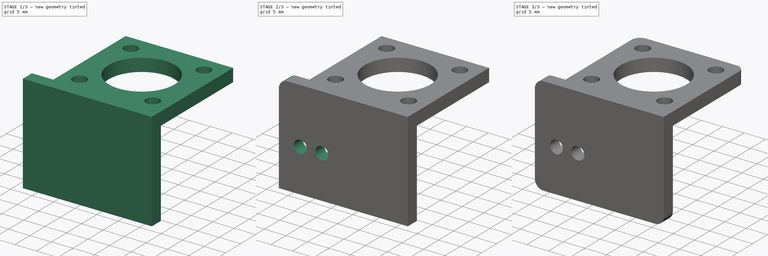
[diagram: build sequence overview — one tinted view per stage of 3, left to right]
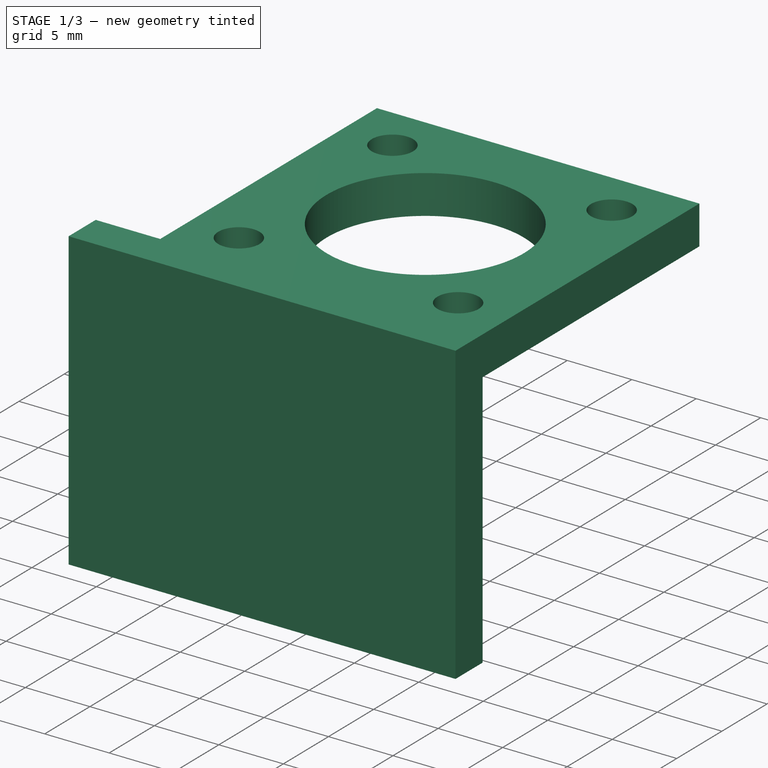
[diagram: stage 1 of 3 — iso view after this stage's code; geometry added in this stage tinted green]
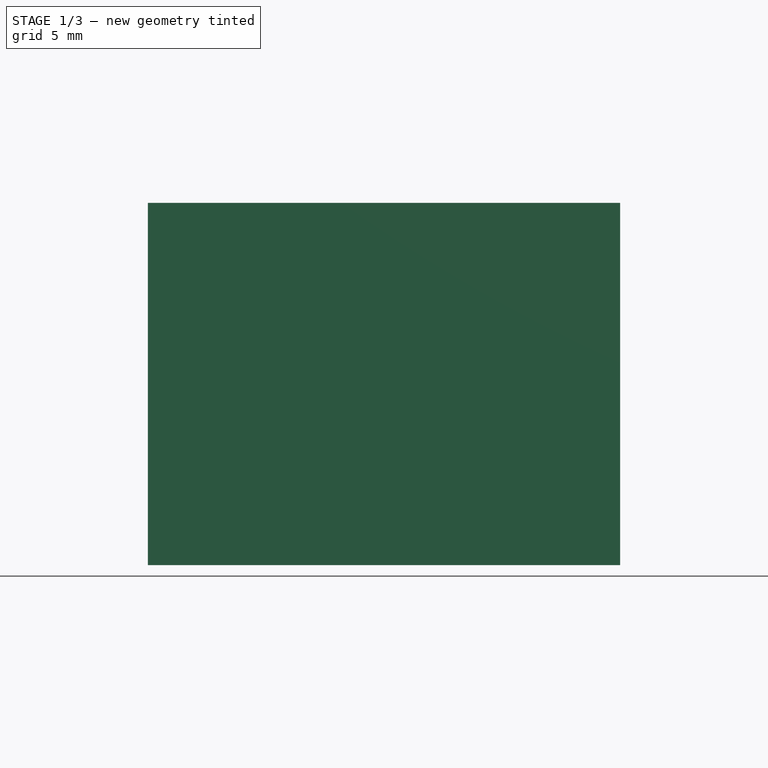
[diagram: stage 1 of 3 — front view after this stage's code; geometry added in this stage tinted green]
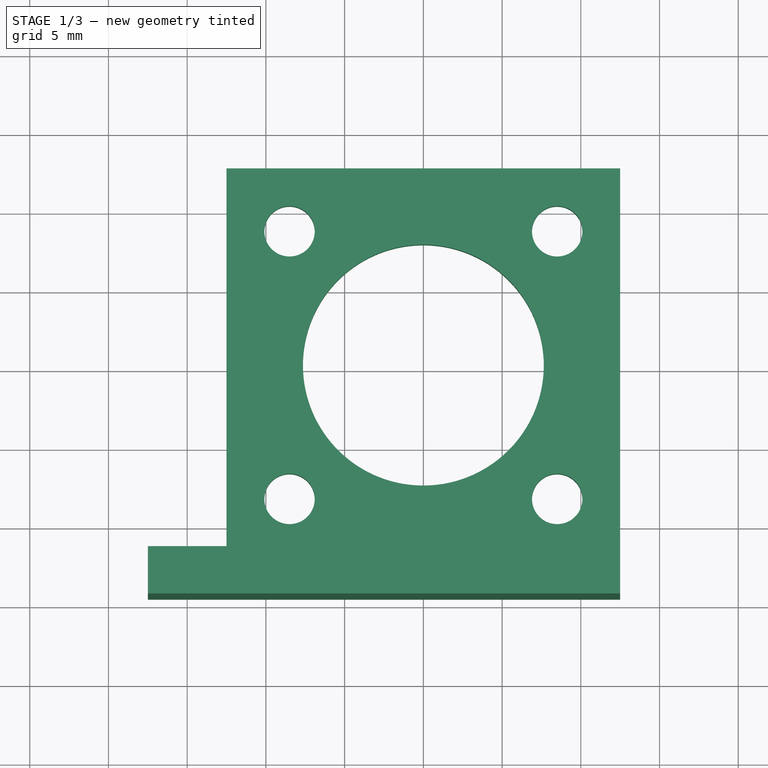
[diagram: stage 1 of 3 — top view after this stage's code; geometry added in this stage tinted green]
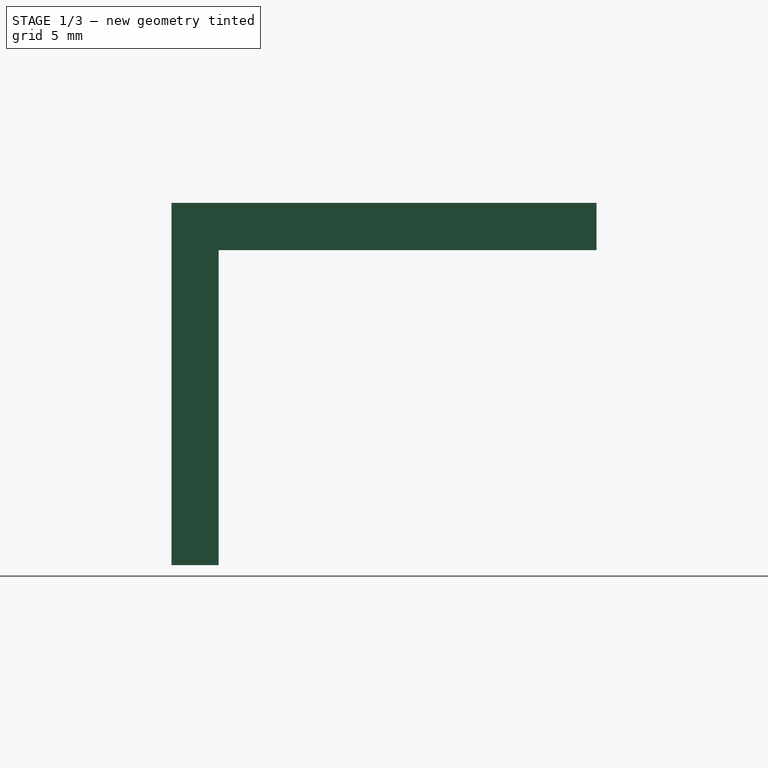
[diagram: stage 1 of 3 — right view after this stage's code; geometry added in this stage tinted green]
FCSTD DOCUMENT  (FreeCAD 0.19R24276 (Git))
Label: Guillotine_part_4_knife_holder
License: All rights reserved
LicenseURL: http://en.wikipedia.org/wiki/All_rights_reserved
objects: Sketcher::SketchObject×4, PartDesign::Pad×3, PartDesign::Fillet×3, PartDesign::Pocket×1, PartDesign::Body×1
note: 19 computed .brp shape members not serialized (recipe doc carries the construction recipe); baked Part::Feature solids carry a one-line shape summary decoded from their .brp

FEATURE [Sketcher::SketchObject] Sketch
  FullyConstrained = true
  MapMode = 5
  Support = -> [XY_Plane]
  sketch-geometry (36):
    g0: Circle CenterX=0 CenterY=0 CenterZ=0 NormalX=0 NormalY=0 NormalZ=1 AngleXU=0 Radius=7.65
    g1: LineSegment StartX=8.5 StartY=8.5 StartZ=0 EndX=-8.5 EndY=8.5 EndZ=0
    g2: LineSegment StartX=-8.5 StartY=8.5 StartZ=0 EndX=-8.5 EndY=-8.5 EndZ=0
    g3: LineSegment StartX=-8.5 StartY=-8.5 StartZ=0 EndX=8.5 EndY=-8.5 EndZ=0
    g4: LineSegment StartX=8.5 StartY=-8.5 StartZ=0 EndX=8.5 EndY=8.5 EndZ=0
    g5: Circle CenterX=0 CenterY=0 CenterZ=0 NormalX=0 NormalY=0 NormalZ=1 AngleXU=0 Radius=12.0208
    g6: Circle CenterX=-8.5 CenterY=8.5 CenterZ=0 NormalX=0 NormalY=0 NormalZ=1 AngleXU=0 Radius=1.6
    g7: Circle CenterX=8.5 CenterY=8.5 CenterZ=0 NormalX=0 NormalY=0 NormalZ=1 AngleXU=0 Radius=1.6
    g8: Circle CenterX=8.5 CenterY=-8.5 CenterZ=0 NormalX=0 NormalY=0 NormalZ=1 AngleXU=0 Radius=1.6
    g9: Circle CenterX=-8.5 CenterY=-8.5 CenterZ=0 NormalX=0 NormalY=0 NormalZ=1 AngleXU=0 Radius=1.6
    g10: LineSegment StartX=-54 StartY=44 StartZ=0 EndX=-54 EndY=-44 EndZ=0
    g11: Circle CenterX=-54 CenterY=44 CenterZ=0 NormalX=0 NormalY=0 NormalZ=1 AngleXU=0 Radius=41.5
    g12: LineSegment StartX=0 StartY=0 StartZ=0 EndX=-54 EndY=0 EndZ=0
    g13: Circle CenterX=-54 CenterY=-44 CenterZ=0 NormalX=0 NormalY=0 NormalZ=1 AngleXU=0 Radius=41.5
    g14: LineSegment StartX=12.5 StartY=12.5 StartZ=0 EndX=-12.5 EndY=12.5 EndZ=0
    g15: LineSegment StartX=-12.5 StartY=12.5 StartZ=0 EndX=-12.5 EndY=-12.5 EndZ=0
    g16: LineSegment StartX=-12.5 StartY=-12.5 StartZ=0 EndX=12.5 EndY=-12.5 EndZ=0
    g17: LineSegment StartX=12.5 StartY=-12.5 StartZ=0 EndX=12.5 EndY=12.5 EndZ=0
    g18: Circle CenterX=0 CenterY=0 CenterZ=0 NormalX=0 NormalY=0 NormalZ=1 AngleXU=0 Radius=17.6777
    g19: LineSegment StartX=-12.5 StartY=44 StartZ=0 EndX=-12.5 EndY=-44 EndZ=0
    g20: LineSegment StartX=-17.5 StartY=-12.5 StartZ=0 EndX=12.5 EndY=-12.5 EndZ=0
    g21: LineSegment StartX=12.5 StartY=-12.5 StartZ=0 EndX=12.5 EndY=-14.5 EndZ=0
    g22: LineSegment StartX=12.5 StartY=-14.5 StartZ=0 EndX=-17.5 EndY=-14.5 EndZ=0
    g23: LineSegment StartX=-17.5 StartY=-14.5 StartZ=0 EndX=-17.5 EndY=-12.5 EndZ=0
    g24: LineSegment StartX=-12.5 StartY=-11.5 StartZ=0 EndX=-12.5 EndY=12.5 EndZ=0
    g25: LineSegment StartX=-12.5 StartY=12.5 StartZ=0 EndX=12.5 EndY=12.5 EndZ=0
    g26: LineSegment StartX=12.5 StartY=12.5 StartZ=0 EndX=12.5 EndY=-14.5 EndZ=0
    g27: LineSegment StartX=12.5 StartY=-14.5 StartZ=0 EndX=-17.5 EndY=-14.5 EndZ=0
    g28: LineSegment StartX=-17.5 StartY=-14.5 StartZ=0 EndX=-17.5 EndY=-12.5 EndZ=0
    g29: LineSegment StartX=-17.5 StartY=-12.5 StartZ=0 EndX=-12.5 EndY=-12.5 EndZ=0
    g30: Circle CenterX=-8.5 CenterY=-8.5 CenterZ=0 NormalX=0 NormalY=0 NormalZ=1 AngleXU=0 Radius=3
    g31: Circle CenterX=8.5 CenterY=-8.5 CenterZ=0 NormalX=0 NormalY=0 NormalZ=1 AngleXU=0 Radius=3
    g32: LineSegment StartX=-17.5 StartY=-11.5 StartZ=0 EndX=12.5 EndY=-11.5 EndZ=0
    g33: LineSegment StartX=-17.5 StartY=-12.5 StartZ=0 EndX=-17.5 EndY=-11.5 EndZ=0
    g34: LineSegment StartX=-17.5 StartY=-14.5 StartZ=0 EndX=-17.5 EndY=-11.5 EndZ=0
    g35: LineSegment StartX=-17.5 StartY=-11.5 StartZ=0 EndX=-12.5 EndY=-11.5 EndZ=0
  constraints (91):
    c: Coincident(g0,g-1)
    c: Diameter(g0) = 15.3
    c: Coincident(g1,g2)
    c: Coincident(g2,g3)
    c: Coincident(g3,g4)
    c: Coincident(g4,g1)
    c: Equal(g1,g2)
    c: Equal(g1,g3)
    c: Equal(g1,g4)
    c: PointOnObject(g1,g5)
    c: PointOnObject(g2,g5)
    c: PointOnObject(g3,g5)
    c: PointOnObject(g4,g5)
    c: Coincident(g5,g-1)
    c: Horizontal(g1)
    c: Coincident(g6,g1)
    c: Coincident(g7,g1)
    c: Coincident(g8,g3)
    c: Coincident(g9,g2)
    c: Diameter(g9) = 3.2
    c: Equal(g9,g6)
    c: Equal(g9,g7)
    c: Equal(g9,g8)
    c: Vertical(g10)
    c: DistanceX(g10,g-1) = 54
    c: Coincident(g11,g10)
    c: Diameter(g11) = 83
    c: Coincident(g12,g-1)
    c: PointOnObject(g12,g-1)
    c: Symmetric(g10,g10,g12)
    c: DistanceY(g10,g10) = 88
    c: Coincident(g13,g10)
    c: Equal(g11,g13)
    c: Coincident(g14,g15)
    c: Coincident(g15,g16)
    c: Coincident(g16,g17)
    c: Coincident(g17,g14)
    c: Equal(g14,g15)
    c: Equal(g14,g16)
    c: Equal(g14,g17)
    c: PointOnObject(g14,g18)
    c: PointOnObject(g15,g18)
    c: PointOnObject(g16,g18)
    c: PointOnObject(g17,g18)
    c: Coincident(g18,g-1)
    c: Horizontal(g14)
    c: DistanceX(g14,g14) = 25
    c: DistanceX(g1,g1) = 17
    c: PointOnObject(g19,g11)
    c: PointOnObject(g19,g13)
    c: Vertical(g19)
    c: Tangent(g19,g11)
    c: Horizontal(g20,g15)
    c: Coincident(g20,g21)
    c: Coincident(g21,g22)
    c: Coincident(g22,g23)
    c: Coincident(g23,g20)
    c: Horizontal(g20)
    c: Horizontal(g22)
    c: Vertical(g21)
    c: Vertical(g23)
    c: Vertical(g16,g20)
    c: DistanceY(g21,g21) = 2
    c: DistanceX(g22,g22) = 30
    c: Coincident(g24,g14)
    c: Coincident(g25,g24)
    c: Coincident(g14,g25)
    c: Coincident(g26,g25)
    c: Coincident(g26,g21)
    c: Coincident(g27,g26)
    c: Coincident(g27,g22)
    c: Coincident(g28,g27)
    c: Coincident(g28,g20)
    c: Coincident(g29,g28)
    c: Coincident(g29,g15)
    c: Coincident(g30,g9)
    c: Coincident(g31,g8)
    c: Diameter(g30) = 6
    c: Equal(g30,g31)
    c: Horizontal(g32)
    c: PointOnObject(g32,g17)
    c: DistanceY(g16,g32) = 1
    c: Coincident(g33,g28)
    c: Vertical(g33)
    c: Coincident(g32,g33)
    c: Coincident(g34,g27)
    c: Coincident(g34,g32)
    c: Coincident(g35,g34)
    c: PointOnObject(g35,g15)
    c: PointOnObject(g24,g32)
    c: Coincident(g24,g35)
FEATURE [PartDesign::Pad] Pad
  Direction = (1,1,1)
  Length = 3
  Length2 = 100
  Profile = -> Sketch
  Type = 0
FEATURE [Sketcher::SketchObject] Sketch001
  FullyConstrained = true
  MapMode = 5
  Placement = pos=(0,0,0) rot=(1,0,0;3.14159rad)
  Support = -> [Pad]
  sketch-geometry (4):
    g0: LineSegment StartX=-17.5 StartY=14.5 StartZ=0 EndX=12.5 EndY=14.5 EndZ=0
    g1: LineSegment StartX=12.5 StartY=14.5 StartZ=0 EndX=12.5 EndY=11.5 EndZ=0
    g2: LineSegment StartX=12.5 StartY=11.5 StartZ=0 EndX=-17.5 EndY=11.5 EndZ=0
    g3: LineSegment StartX=-17.5 StartY=11.5 StartZ=0 EndX=-17.5 EndY=14.5 EndZ=0
  constraints (12):
    c: Coincident(g0,g1)
    c: Coincident(g1,g2)
    c: Coincident(g2,g3)
    c: Coincident(g3,g0)
    c: Horizontal(g0)
    c: Horizontal(g2)
    c: Vertical(g1)
    c: Vertical(g3)
    c: DistanceY(g-1,g1) = 11.5
    c: DistanceX(g-1,g1) = 12.5
    c: DistanceX(g2,g-1) = 17.5
    c: DistanceY(g1,g0) = 3
FEATURE [PartDesign::Pad] Pad001
  BaseFeature = -> Pad
  Direction = (1,1,1)
  Length = 20
  Length2 = 100
  Profile = -> Sketch001
  Type = 0
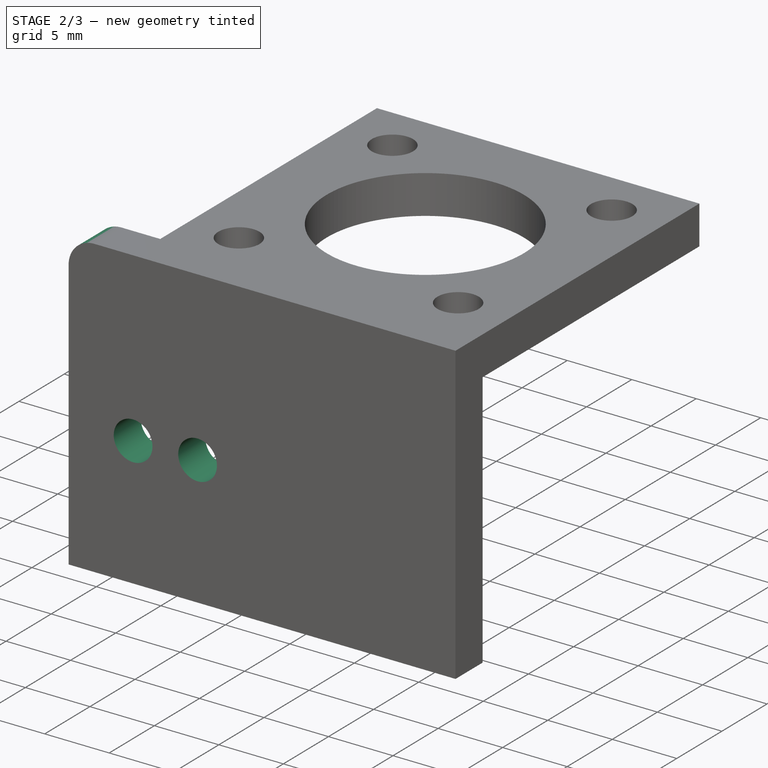
[diagram: stage 2 of 3 — iso view after this stage's code; geometry added in this stage tinted green]
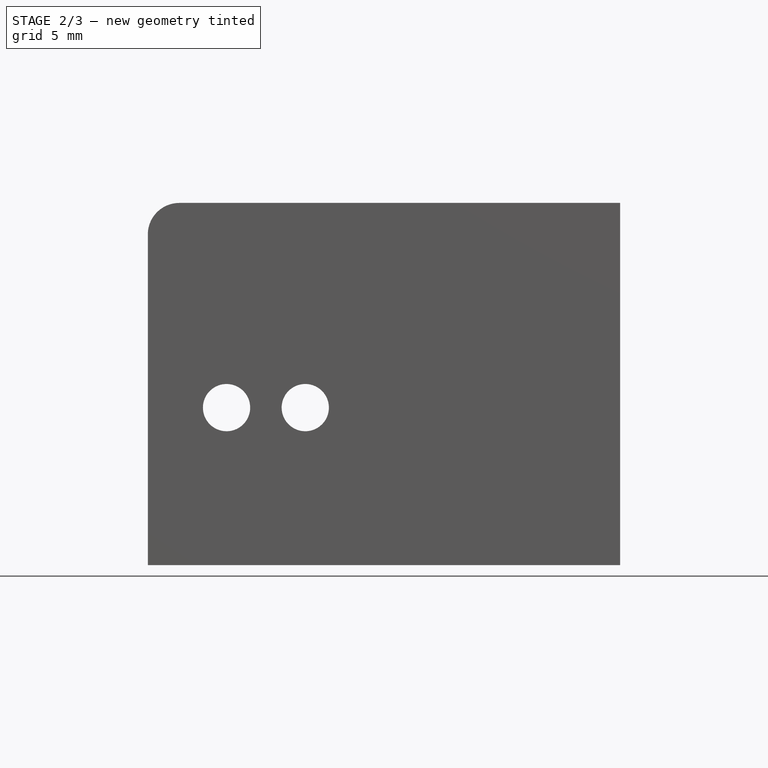
[diagram: stage 2 of 3 — front view after this stage's code; geometry added in this stage tinted green]
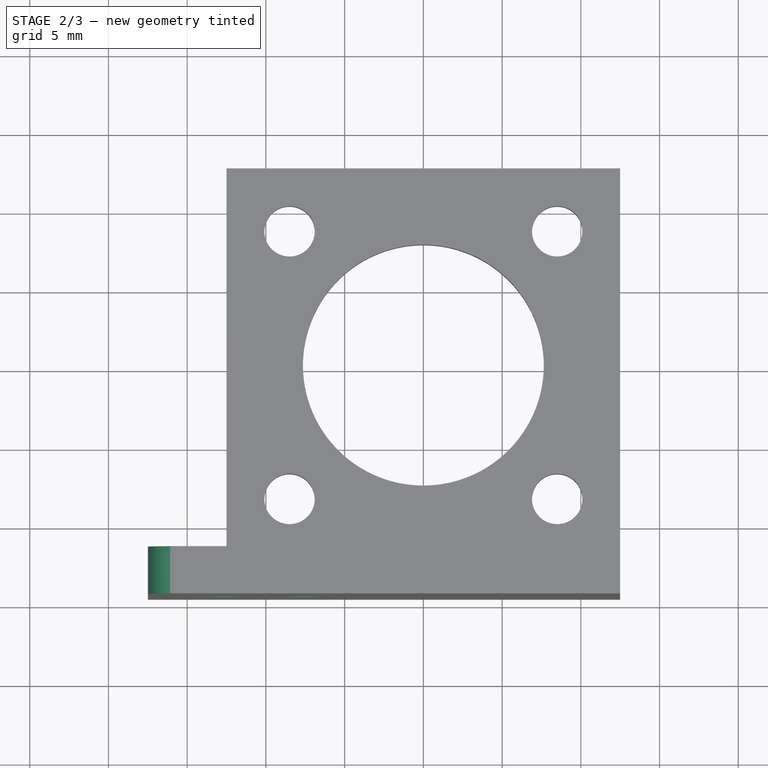
[diagram: stage 2 of 3 — top view after this stage's code; geometry added in this stage tinted green]
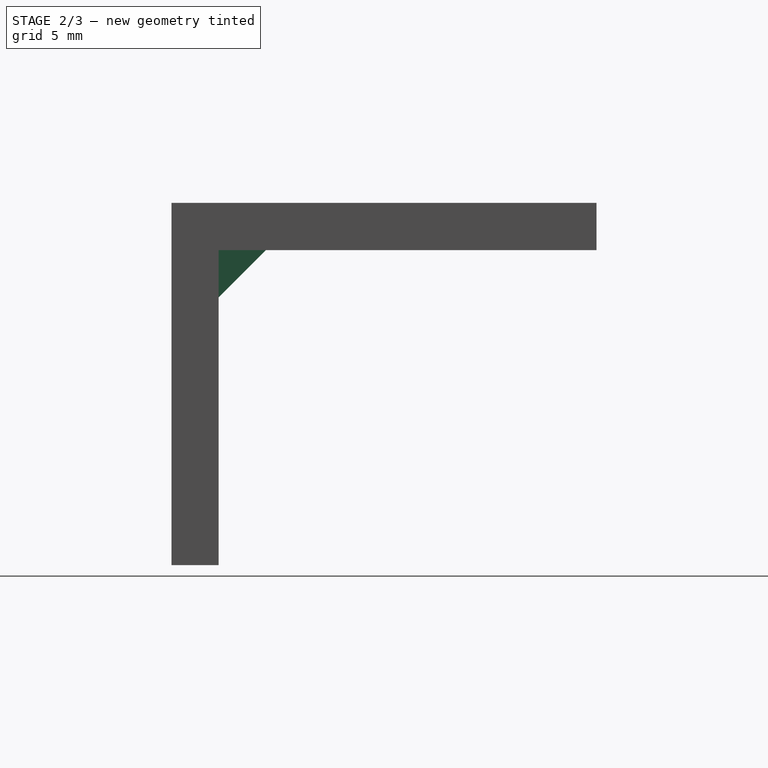
[diagram: stage 2 of 3 — right view after this stage's code; geometry added in this stage tinted green]
FEATURE [Sketcher::SketchObject] Sketch002
  FullyConstrained = false
  MapMode = 5
  Placement = pos=(0,-14.5,0) rot=(1,0,0;1.5708rad)
  Support = -> [Pad001]
  sketch-geometry (5):
    g0: LineSegment StartX=-12.5 StartY=3 StartZ=0 EndX=-12.5 EndY=-20 EndZ=0
    g1: LineSegment StartX=0 StartY=0 StartZ=0 EndX=12.5 EndY=0 EndZ=0
    g2: LineSegment StartX=-19.8385 StartY=-10 StartZ=0 EndX=-12.5 EndY=-10 EndZ=0
    g3: Circle CenterX=-12.5 CenterY=-10 CenterZ=0 NormalX=0 NormalY=0 NormalZ=1 AngleXU=0 Radius=1.5
    g4: Circle CenterX=-7.5 CenterY=-10 CenterZ=0 NormalX=0 NormalY=0 NormalZ=1 AngleXU=0 Radius=1.5
  constraints (15):
    c: Vertical(g0)
    c: Coincident(g1,g-1)
    c: PointOnObject(g1,g-1)
    c: DistanceX(g1,g1) = 12.5
    c: DistanceX(g0,g1) = 25
    c: DistanceY(g1,g0) = 3
    c: DistanceY(g0,g0) = 23
    c: Horizontal(g2)
    c: DistanceY(g0,g2) = 10
    c: PointOnObject(g2,g0)
    c: Coincident(g3,g2)
    c: Diameter(g3) = 3
    c: DistanceX(g2,g4) = 5
    c: Equal(g4,g3)
    c: Horizontal(g2,g4)
FEATURE [PartDesign::Pocket] Pocket
  BaseFeature = -> Pad001
  Length = 5
  Length2 = 100
  Profile = -> Sketch002
  Type = 1
FEATURE [Sketcher::SketchObject] Sketch003
  AttachmentOffset = pos=(0,0,-12.5) rot=(0,0,1;0rad)
  FullyConstrained = true
  MapMode = 5
  Placement = pos=(0,0,0) rot=(0.57735,0.57735,0.57735;2.0944rad)
  Support = -> [Pocket]
  sketch-geometry (3):
    g0: LineSegment StartX=-11.5 StartY=0 StartZ=0 EndX=-8.5 EndY=0 EndZ=0
    g1: LineSegment StartX=-11.5 StartY=0 StartZ=0 EndX=-11.5 EndY=-3 EndZ=0
    g2: LineSegment StartX=-11.5 StartY=-3 StartZ=0 EndX=-8.5 EndY=0 EndZ=0
  constraints (9):
    c: PointOnObject(g0,g-1)
    c: Coincident(g1,g0)
    c: Vertical(g1)
    c: Coincident(g2,g1)
    c: Coincident(g2,g0)
    c: DistanceX(g0,g0) = 3
    c: DistanceY(g1,g1) = 3
    c: DistanceX(g0,g-1) = 11.5
    c: Horizontal(g0)
FEATURE [PartDesign::Pad] Pad002
  BaseFeature = -> Pocket
  Direction = (1,1,1)
  Length = 10
  Length2 = 100
  Midplane = true
  Profile = -> Sketch003
  Type = 0
FEATURE [PartDesign::Fillet] Fillet
  Base = -> Pad002 [Edge24]
  BaseFeature = -> Pad002
  Radius = 2
  SupportTransform = false
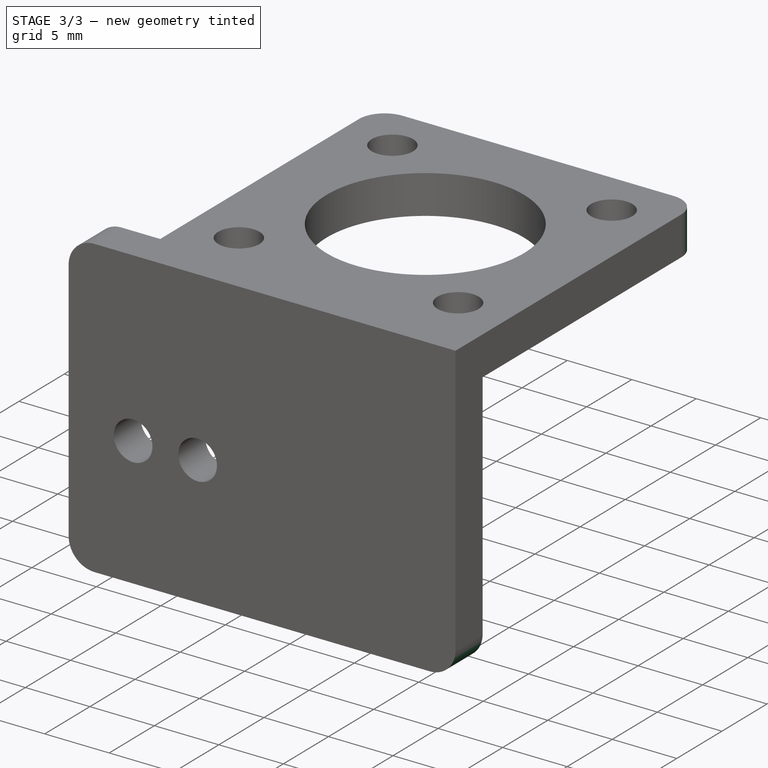
[diagram: stage 3 of 3 — iso view after this stage's code; geometry added in this stage tinted green]
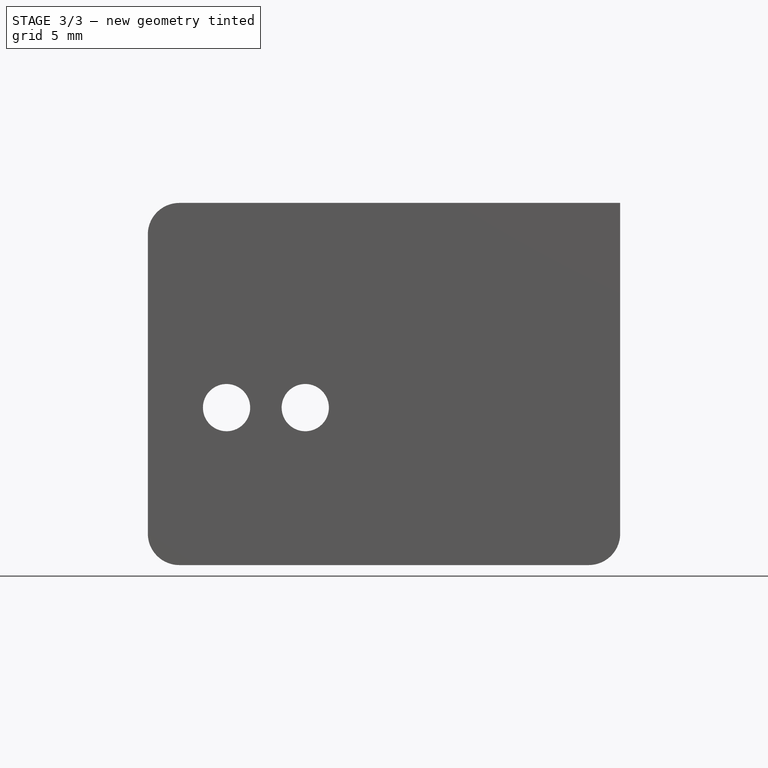
[diagram: stage 3 of 3 — front view after this stage's code; geometry added in this stage tinted green]
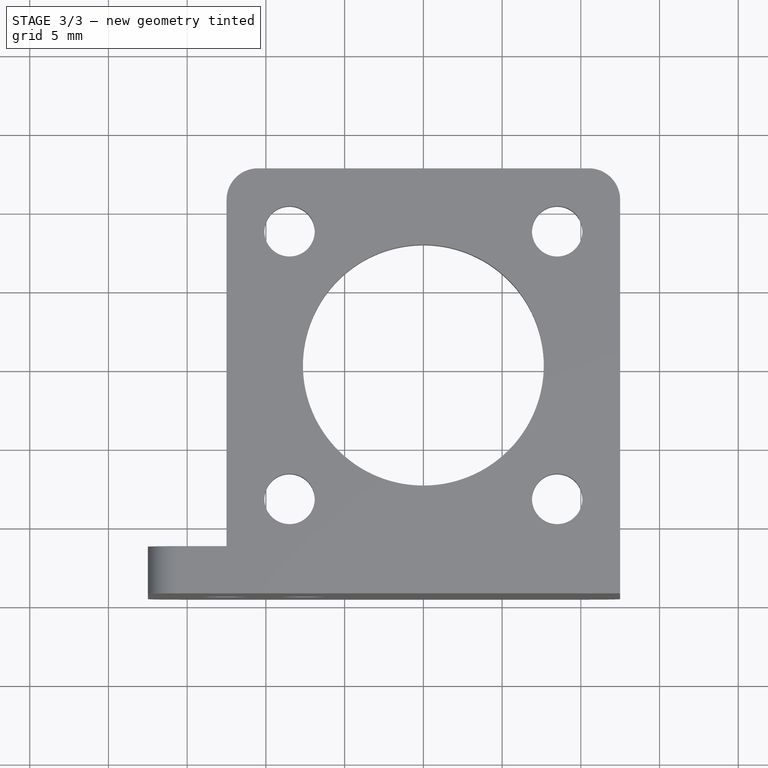
[diagram: stage 3 of 3 — top view after this stage's code; geometry added in this stage tinted green]
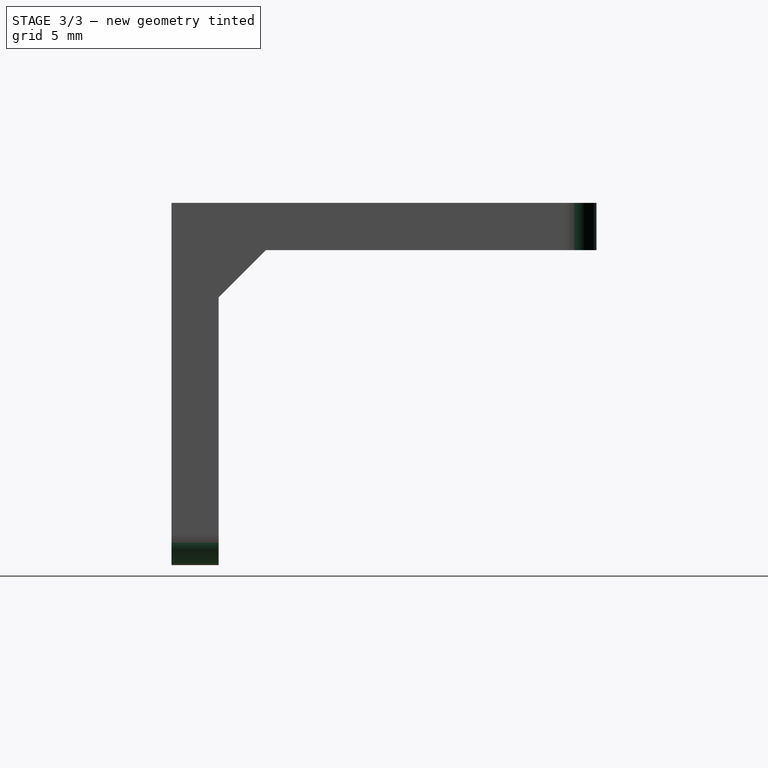
[diagram: stage 3 of 3 — right view after this stage's code; geometry added in this stage tinted green]
FEATURE [PartDesign::Fillet] Fillet001
  Base = -> Fillet [Edge49,Edge35]
  BaseFeature = -> Fillet
  Radius = 2
  SupportTransform = false
FEATURE [PartDesign::Fillet] Fillet002
  Base = -> Fillet001 [Edge61,Edge60]
  BaseFeature = -> Fillet001
  Radius = 2
  SupportTransform = false
FEATURE [PartDesign::Body] Body
  Group = -> [Sketch,Pad,Sketch001,Pad001,Sketch002,Pocket,Sketch003,Pad002,Fillet,Fillet001,Fillet002]
  Origin = -> Origin
  Tip = -> Fillet002
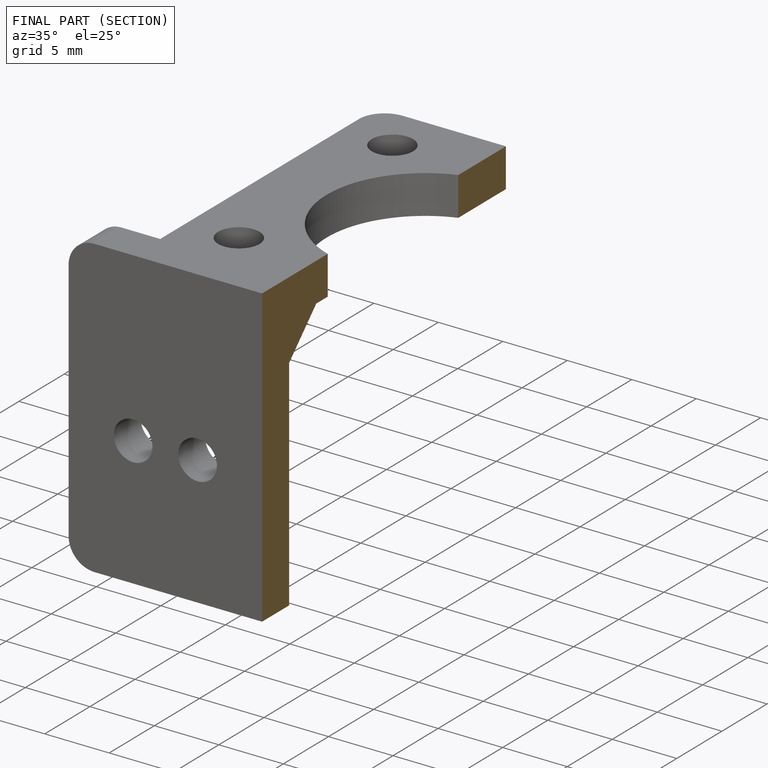
[diagram: finished part — half-section view (interior)]
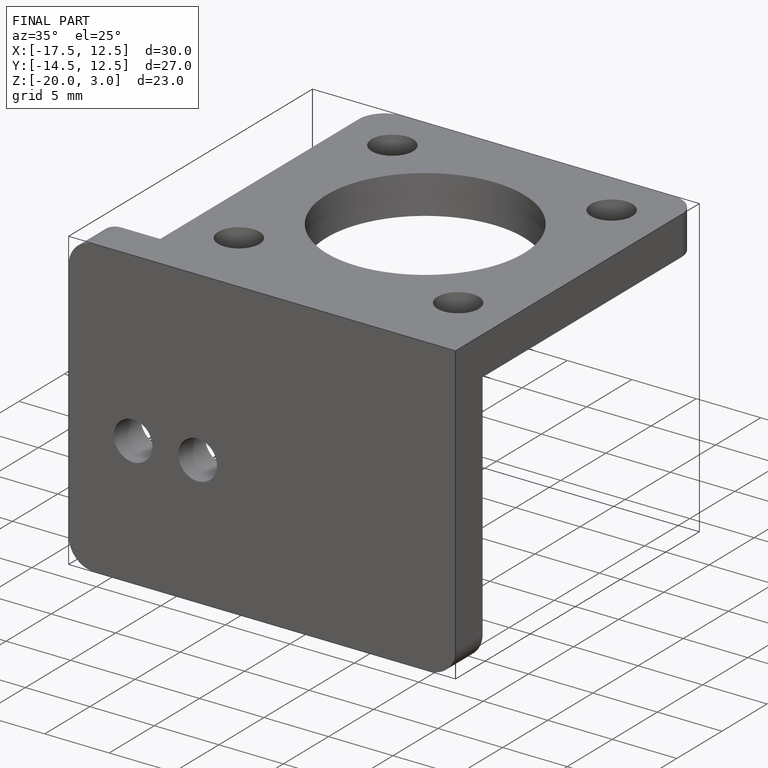
[diagram: finished part — iso view with bounding-box wireframe]
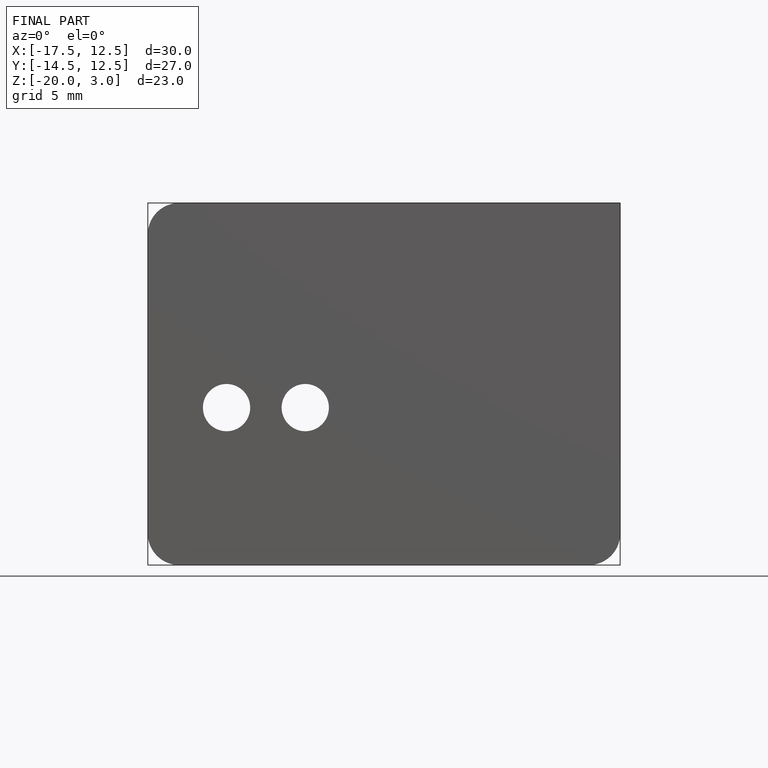
[diagram: finished part — front view with bounding-box wireframe]
